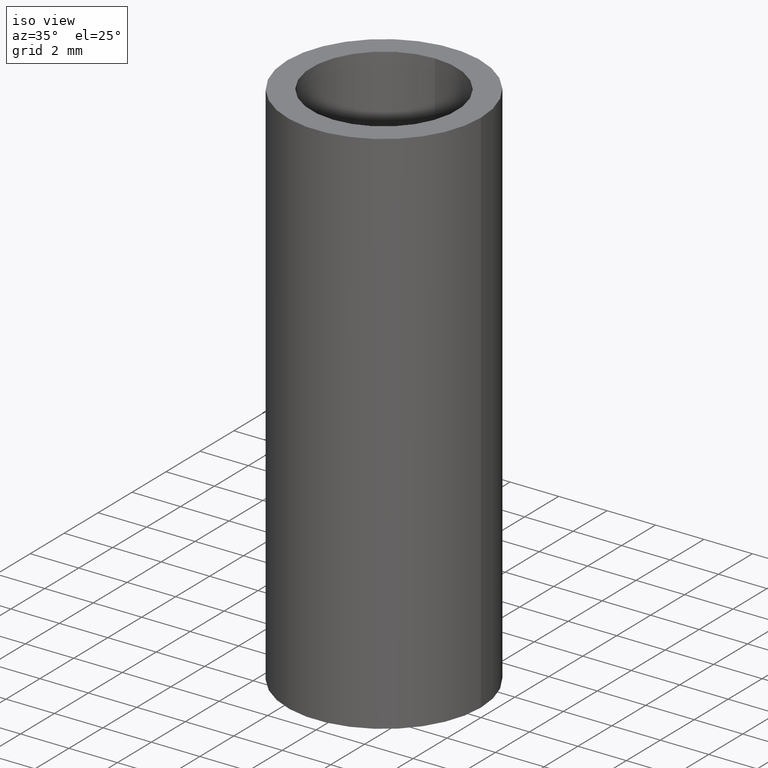
[diagram: clean part render]
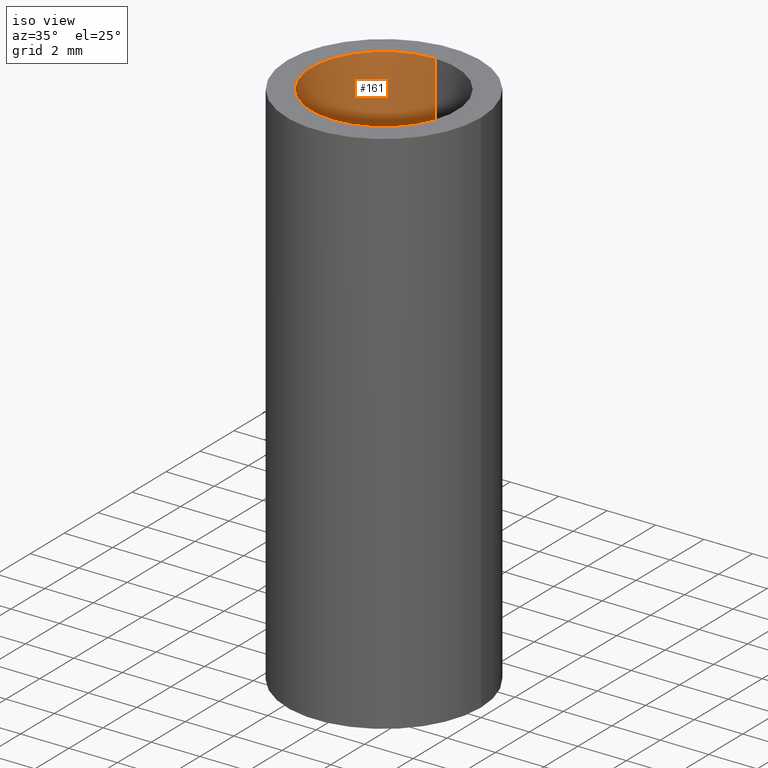
[diagram: same view with one face highlighted and labeled with its STEP entity id]
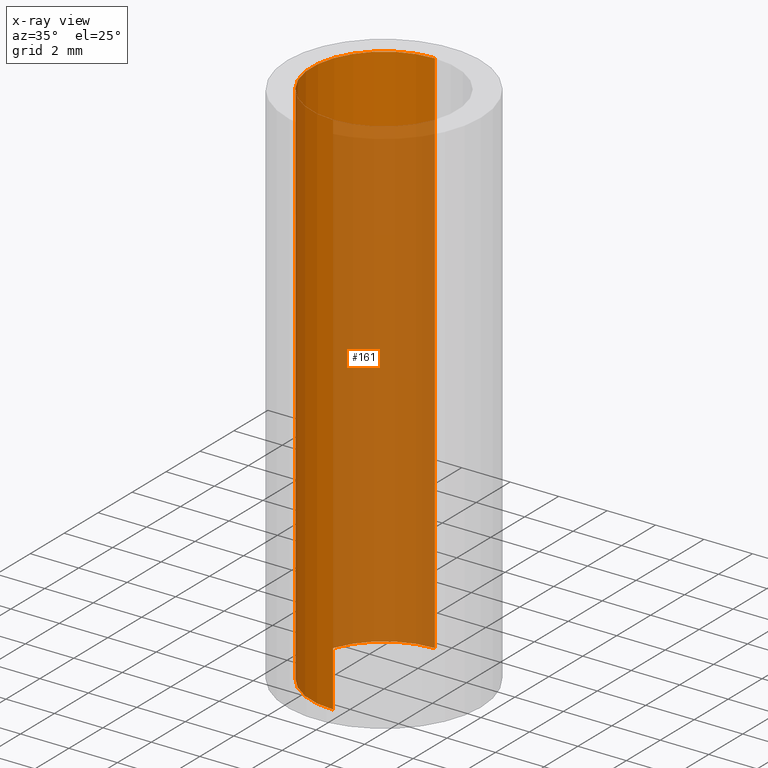
[diagram: x-ray of the same camera — body ghosted, the highlighted face saturated]
A machine part, iso view. The second image highlights one B-rep face of the part: STEP entity #161.
The next image is the same camera in x-ray: the body ghosted, the highlighted face saturated — about 64% of this face is hidden behind the body in this view.
In plain terms, the highlighted cylindrical surface (partial cylindrical patch) has radius 3 mm, axis along (0, 0, -1).
Its self-contained STEP definition (entity closure, byte-faithful):
#7=CARTESIAN_POINT('',(-3.673940E-016,3.0,22.0));
#8=VERTEX_POINT('',#7);
#9=CARTESIAN_POINT('',(0.0,-3.0,22.0));
#10=VERTEX_POINT('',#9);
#18=CARTESIAN_POINT('',(-3.673940E-016,3.0,0.0));
#19=VERTEX_POINT('',#18);
#20=CARTESIAN_POINT('',(-3.673940E-016,3.0,22.0));
#21=DIRECTION('',(0.0,0.0,-1.0));
#22=VECTOR('',#21,22.0);
#23=LINE('',#20,#22);
#24=EDGE_CURVE('',#8,#19,#23,.T.);
#26=CARTESIAN_POINT('',(0.0,-3.0,0.0));
#27=VERTEX_POINT('',#26);
#35=CARTESIAN_POINT('',(0.0,-3.0,22.0));
#36=DIRECTION('',(0.0,0.0,-1.0));
#37=VECTOR('',#36,22.0);
#38=LINE('',#35,#37);
#39=EDGE_CURVE('',#10,#27,#38,.T.);
#119=CARTESIAN_POINT('',(0.0,0.0,0.0));
#120=DIRECTION('',(0.0,0.0,-1.0));
#121=DIRECTION('',(-1.0,0.0,0.0));
#122=AXIS2_PLACEMENT_3D('',#119,#120,#121);
#123=CIRCLE('',#122,3.0);
#124=EDGE_CURVE('',#27,#19,#123,.T.);
#139=CARTESIAN_POINT('',(0.0,0.0,22.0));
#140=DIRECTION('',(0.0,0.0,-1.0));
#141=DIRECTION('',(0.0,-1.0,0.0));
#142=AXIS2_PLACEMENT_3D('',#139,#140,#141);
#143=CIRCLE('',#142,3.0);
#144=EDGE_CURVE('',#10,#8,#143,.T.);
#150=CARTESIAN_POINT('',(0.0,0.0,22.000000010000001));
#151=DIRECTION('',(0.0,0.0,-1.0));
#152=DIRECTION('',(1.0,0.0,0.0));
#153=AXIS2_PLACEMENT_3D('',#150,#151,#152);
#154=CYLINDRICAL_SURFACE('',#153,3.0);
#155=ORIENTED_EDGE('',*,*,#24,.F.);
#156=ORIENTED_EDGE('',*,*,#144,.F.);
#157=ORIENTED_EDGE('',*,*,#39,.T.);
#158=ORIENTED_EDGE('',*,*,#124,.T.);
#159=EDGE_LOOP('',(#155,#156,#157,#158));
#160=FACE_OUTER_BOUND('',#159,.T.);
#161=ADVANCED_FACE('',(#160),#154,.F.);